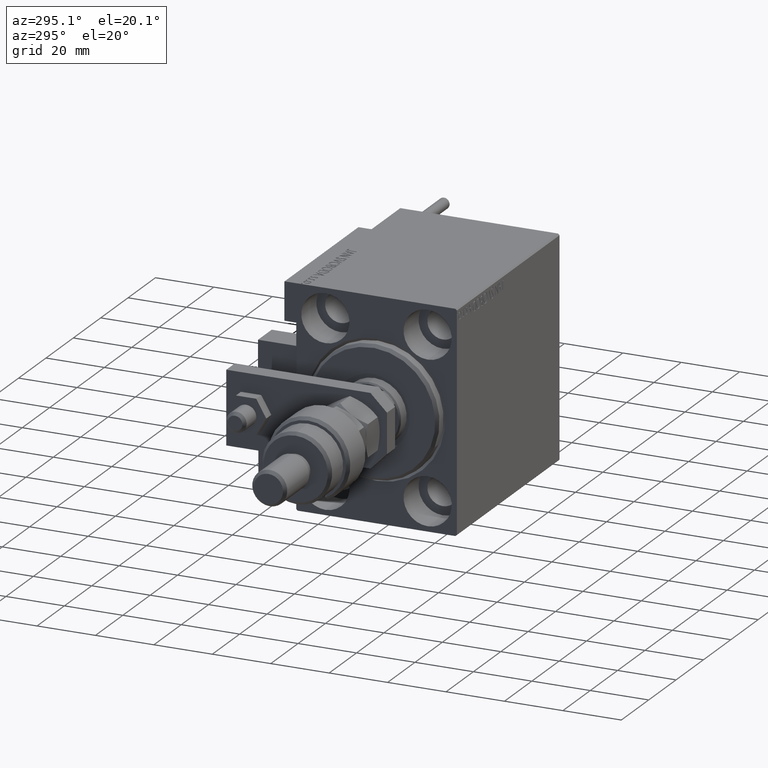
[diagram: clean part render]
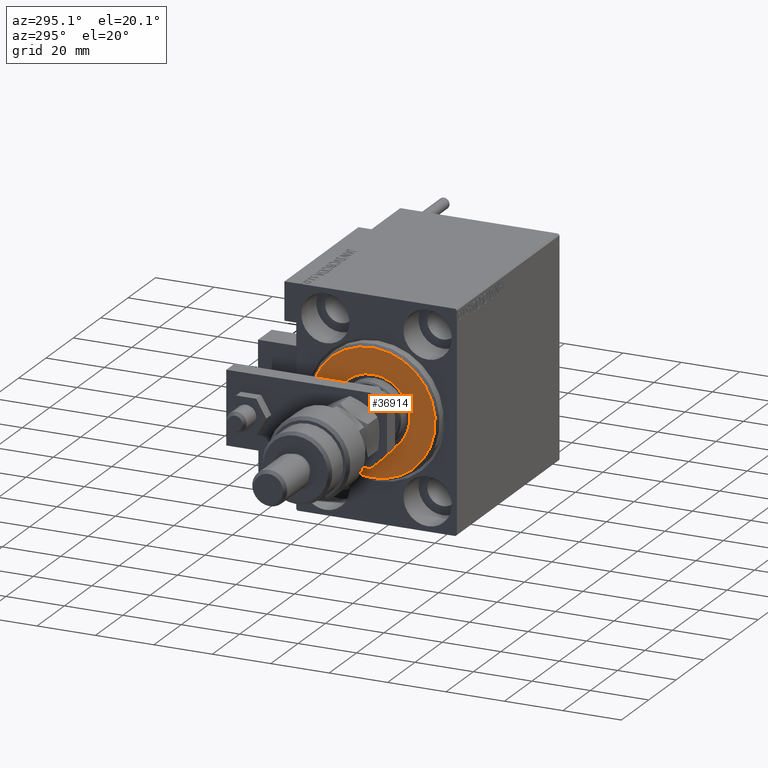
[diagram: same view with one face highlighted and labeled with its STEP entity id]
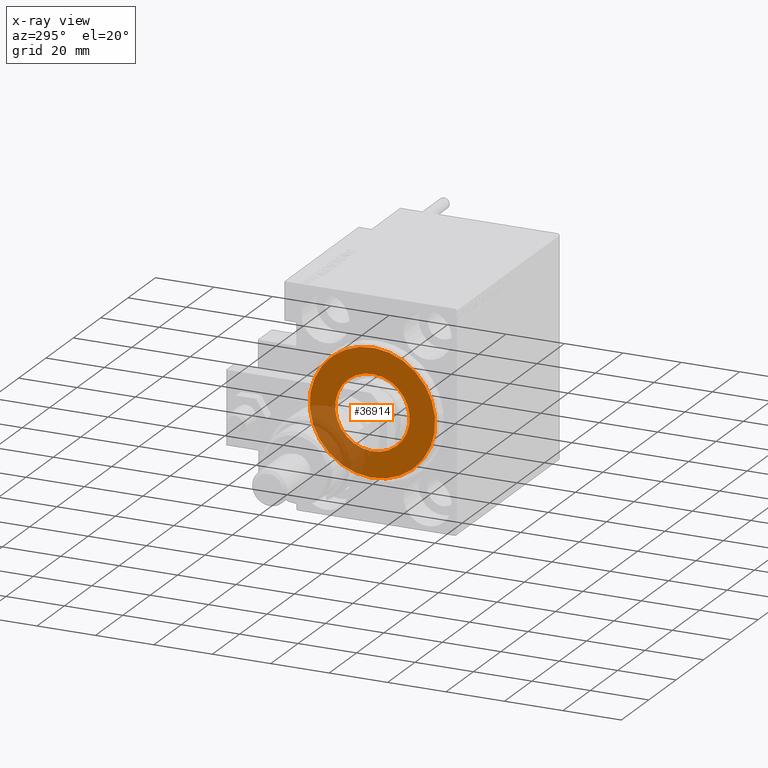
[diagram: x-ray of the same camera — body ghosted, the highlighted face saturated]
A machine part, auxiliary view. The second image highlights one B-rep face of the part: STEP entity #36914.
The next image is the same camera in x-ray: the body ghosted, the highlighted face saturated — about 22% of this face is hidden behind the body in this view.
In plain terms, the highlighted planar face has unit normal (-1, 0, 0).
Its self-contained STEP definition (entity closure, byte-faithful):
#731 = VERTEX_POINT ( 'NONE', #23493 ) ;
#837 = CIRCLE ( 'NONE', #51988, 12.75000000000000000 ) ;
#1396 = ORIENTED_EDGE ( 'NONE', *, *, #38001, .T. ) ;
#2848 = ORIENTED_EDGE ( 'NONE', *, *, #26476, .T. ) ;
#6208 = DIRECTION ( 'NONE',  ( 0.000000000000000000, 0.000000000000000000, -1.000000000000000000 ) ) ;
#6985 = DIRECTION ( 'NONE',  ( 0.000000000000000000, 0.000000000000000000, -1.000000000000000000 ) ) ;
#10358 = DIRECTION ( 'NONE',  ( 0.000000000000000000, 0.000000000000000000, -1.000000000000000000 ) ) ;
#10475 = EDGE_CURVE ( 'NONE', #50848, #37129, #31513, .T. ) ;
#10715 = DIRECTION ( 'NONE',  ( 1.000000000000000000, -0.000000000000000000, 0.000000000000000000 ) ) ;
#11889 = DIRECTION ( 'NONE',  ( 1.000000000000000000, -0.000000000000000000, 0.000000000000000000 ) ) ;
#18301 = FACE_OUTER_BOUND ( 'NONE', #40689, .T. ) ;
#19083 = AXIS2_PLACEMENT_3D ( 'NONE', #44143, #11889, #51911 ) ;
#21355 = AXIS2_PLACEMENT_3D ( 'NONE', #47257, #10715, #6985 ) ;
#23016 = DIRECTION ( 'NONE',  ( -1.000000000000000000, 0.000000000000000000, -0.000000000000000000 ) ) ;
#23493 = CARTESIAN_POINT ( 'NONE',  ( 3.000000000000000000, 0.000000000000000000, 21.50000000000000355 ) ) ;
#24377 = EDGE_CURVE ( 'NONE', #37129, #50848, #837, .T. ) ;
#26476 = EDGE_CURVE ( 'NONE', #731, #36744, #28189, .T. ) ;
#28189 = CIRCLE ( 'NONE', #21355, 21.50000000000000355 ) ;
#28499 = ORIENTED_EDGE ( 'NONE', *, *, #10475, .T. ) ;
#29452 = CARTESIAN_POINT ( 'NONE',  ( 3.000000000000000000, 0.000000000000000000, 12.75000000000000000 ) ) ;
#29785 = CARTESIAN_POINT ( 'NONE',  ( 3.000000000000000000, 2.694222958124177598E-15, -21.50000000000000355 ) ) ;
#29842 = DIRECTION ( 'NONE',  ( -1.000000000000000000, 0.000000000000000000, -0.000000000000000000 ) ) ;
#30786 = DIRECTION ( 'NONE',  ( 1.000000000000000000, -0.000000000000000000, 0.000000000000000000 ) ) ;
#31019 = AXIS2_PLACEMENT_3D ( 'NONE', #39589, #30786, #39330 ) ;
#31513 = CIRCLE ( 'NONE', #40046, 12.75000000000000000 ) ;
#34219 = CARTESIAN_POINT ( 'NONE',  ( 3.000000000000000000, 0.000000000000000000, 0.000000000000000000 ) ) ;
#34556 = FACE_BOUND ( 'NONE', #39531, .T. ) ;
#36744 = VERTEX_POINT ( 'NONE', #29785 ) ;
#36914 = ADVANCED_FACE ( 'NONE', ( #18301, #34556 ), #50840, .T. ) ;
#36992 = CIRCLE ( 'NONE', #31019, 21.50000000000000355 ) ;
#37129 = VERTEX_POINT ( 'NONE', #29452 ) ;
#38001 = EDGE_CURVE ( 'NONE', #36744, #731, #36992, .T. ) ;
#39180 = CARTESIAN_POINT ( 'NONE',  ( 3.000000000000000000, 1.561424668912874914E-15, -12.75000000000000000 ) ) ;
#39330 = DIRECTION ( 'NONE',  ( 0.000000000000000000, 0.000000000000000000, -1.000000000000000000 ) ) ;
#39531 = EDGE_LOOP ( 'NONE', ( #46838, #28499 ) ) ;
#39589 = CARTESIAN_POINT ( 'NONE',  ( 3.000000000000000000, 0.000000000000000000, 0.000000000000000000 ) ) ;
#40046 = AXIS2_PLACEMENT_3D ( 'NONE', #34219, #23016, #6208 ) ;
#40689 = EDGE_LOOP ( 'NONE', ( #2848, #1396 ) ) ;
#44143 = CARTESIAN_POINT ( 'NONE',  ( 3.000000000000000000, 0.000000000000000000, 0.000000000000000000 ) ) ;
#46838 = ORIENTED_EDGE ( 'NONE', *, *, #24377, .T. ) ;
#46890 = CARTESIAN_POINT ( 'NONE',  ( 3.000000000000000000, 0.000000000000000000, 0.000000000000000000 ) ) ;
#47257 = CARTESIAN_POINT ( 'NONE',  ( 3.000000000000000000, 0.000000000000000000, 0.000000000000000000 ) ) ;
#50840 = PLANE ( 'NONE',  #19083 ) ;
#50848 = VERTEX_POINT ( 'NONE', #39180 ) ;
#51911 = DIRECTION ( 'NONE',  ( 0.000000000000000000, 0.000000000000000000, -1.000000000000000000 ) ) ;
#51988 = AXIS2_PLACEMENT_3D ( 'NONE', #46890, #29842, #10358 ) ;